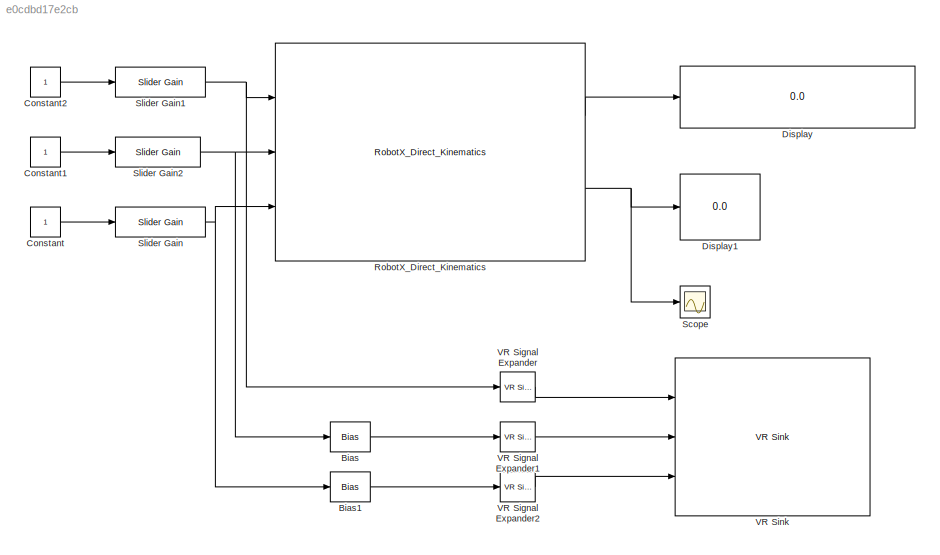
MODEL slx_e0cdbd17e2cb
KIND model
BLOCK [Bias] Bias
  Bias = pi/2
  SaturateOnIntegerOverflow = off
BLOCK [Bias] Bias1
  Bias = 0.5
  SaturateOnIntegerOverflow = off
BLOCK [Constant] Constant
BLOCK [Constant] Constant1
BLOCK [Constant] Constant2
BLOCK [Display] Display
  Decimation = 1
  Ports = [1]
BLOCK [Display] Display1
  Decimation = 1
  Ports = [1]
BLOCK [Reference] RobotX_Direct_Kinematics  REF=RobotX_Lib/RobotX_Direct_Kinematics
  Ports = [3, 2]
  SourceBlock = RobotX_Lib/RobotX_Direct_Kinematics
  SourceType = SubSystem
BLOCK [Scope] Scope
  DataFormat = StructureWithTime
  Decimation = 1
  Grid = on
  LimitDataPoints = off
  MaxDataPoints = 5000
  Ports = [1]
  SampleInput = off
  SampleTime = -1
  SaveName = ScopeData
  SaveToWorkspace = off
  ShowLegends = off
  TickLabels = OneTimeTick
  TimeRange = auto
  YMax = 0.84472
  YMin = -0.63361
  ZoomMode = on
BLOCK [Reference] Slider Gain  REF=simulink/Math
Operations/Slider
Gain
  Ports = [1, 1]
  SourceBlock = simulink/Math\nOperations/Slider\nGain
  SourceType = Slider Gain
  gain = 0.21659
  high = 1
  low = -1
BLOCK [Reference] Slider Gain1  REF=simulink/Math
Operations/Slider
Gain
  Ports = [1, 1]
  SourceBlock = simulink/Math\nOperations/Slider\nGain
  SourceType = Slider Gain
  gain = -1.1721
  high = 3.14
  low = -3.14
BLOCK [Reference] Slider Gain2  REF=simulink/Math
Operations/Slider
Gain
  Ports = [1, 1]
  SourceBlock = simulink/Math\nOperations/Slider\nGain
  SourceType = Slider Gain
  gain = 0.314
  high = 3.14
  low = -3.14
BLOCK [Reference] VR Signal Expander  REF=vrlib/VR Signal Expander
  Ports = [1, 1]
  SourceBlock = vrlib/VR Signal Expander
  SourceType = VR Signal Expander
  outidx = [4]
  outwidth = 4
BLOCK [Reference] VR Signal Expander1  REF=vrlib/VR Signal Expander
  Ports = [1, 1]
  SourceBlock = vrlib/VR Signal Expander
  SourceType = VR Signal Expander
  outidx = [4]
  outwidth = 4
BLOCK [Reference] VR Signal Expander2  REF=vrlib/VR Signal Expander
  Ports = [1, 1]
  SourceBlock = vrlib/VR Signal Expander
  SourceType = VR Signal Expander
  outidx = [3]
  outwidth = 3
BLOCK [Reference] VR Sink  REF=vrlib/VR Sink
  AllowVariableSize = off
  AutoView = on
  FieldsWritten = Jt1_DH_dv.rotation.4.1.1.double#Jt2_DH_dv.rotation.4.1.1.double#Jt3_DH_dv.translation.3.1.1.double
  FigureProperties = {'Position', 'Name', 'Viewpoint', 'CameraBound', 'CameraDirection', 'CameraPosition', 'CameraUpVector', 'ZoomFactor', 'Antialiasing', 'Headlight', 'Lighting', 'NavPanel', 'Sound', 'StatusBar', 'Stereo3D', 'Stereo3DCameraOffset', 'Stereo3DHIT', 'ToolBar', 'Textures', 'Transparency', 'Triad', 'Wireframe', 'NavZones', 'NavMode', 'NavSpeed', 'CaptureFileFormat', 'CaptureFileName', 'Record2DCompressMet...<+754ch>
  InstantiateOnLoad = on
  Ports = [3]
  RemoteChange = off
  RemoteView = off
  SampleTime = -1
  SourceBlock = vrlib/VR Sink
  SourceType = Virtual Reality Sink
  VideoDimensions = []
  ViewEnable = on
  WorldDescription = D-H Reference Frames for Virtual Reality Robot
  WorldFileName = vrrobot.wrl
LINE Bias1:1 -> VR Signal Expander2:1
LINE Bias:1 -> VR Signal Expander1:1
LINE Constant1:1 -> Slider Gain2:1
LINE Constant2:1 -> Slider Gain1:1
LINE Constant:1 -> Slider Gain:1
LINE RobotX_Direct_Kinematics:1 -> Display:1
NET RobotX_Direct_Kinematics:2 -> Display1:1, Scope:1
NET Slider Gain1:1 -> RobotX_Direct_Kinematics:1, VR Signal Expander:1
NET Slider Gain2:1 -> Bias:1, RobotX_Direct_Kinematics:2
NET Slider Gain:1 -> Bias1:1, RobotX_Direct_Kinematics:3
LINE VR Signal Expander1:1 -> VR Sink:2
LINE VR Signal Expander2:1 -> VR Sink:3
LINE VR Signal Expander:1 -> VR Sink:1
note: NET lines group one-source signal fan-out (src -> all destinations, sorted); 1:1 wires keep LINE
